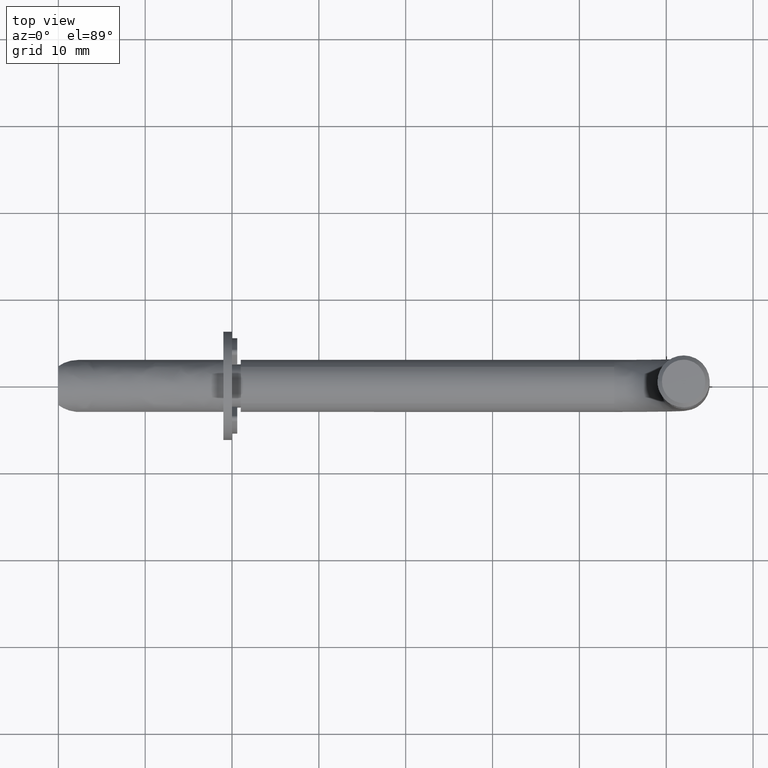
[diagram: clean part render]
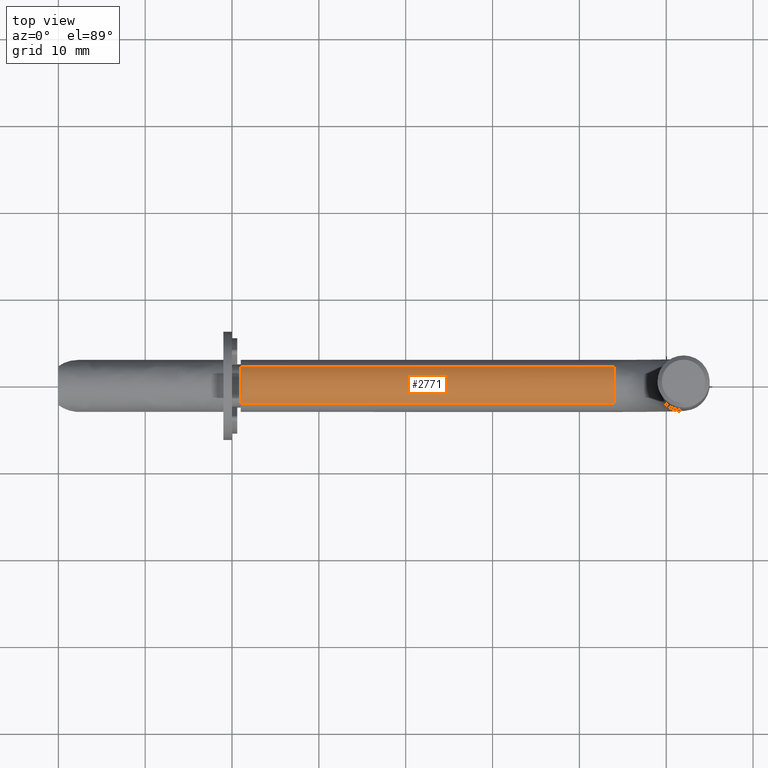
[diagram: same view with one face highlighted and labeled with its STEP entity id]
A machine part, top view. The second image highlights one B-rep face of the part: STEP entity #2771.
In plain terms, the highlighted face is a freeform B-spline surface patch.
Its self-contained STEP definition (entity closure, byte-faithful):
#2582=CARTESIAN_POINT('',(63.999969000000100,-2.065063027710262,18.176123776714721));
#2583=VERTEX_POINT('',#2582);
#2601=CARTESIAN_POINT('',(21.0,-2.065063677703554,18.176123159894551));
#2602=VERTEX_POINT('',#2601);
#2603=CARTESIAN_POINT('',(21.0,-2.065063677703554,18.176123159894551));
#2604=CARTESIAN_POINT('',(63.999969000000100,-2.065063027710262,18.176123776714721));
#2605=QUASI_UNIFORM_CURVE('',1,(#2603,#2604),.UNSPECIFIED.,.F.,.U.);
#2606=EDGE_CURVE('',#2602,#2583,#2605,.T.);
#2625=CARTESIAN_POINT('',(21.0,2.176123322532980,18.065063506318371));
#2626=VERTEX_POINT('',#2625);
#2642=CARTESIAN_POINT('',(63.999969000100577,2.176123713575499,18.065063094170949));
#2643=VERTEX_POINT('',#2642);
#2644=CARTESIAN_POINT('',(21.0,2.176123322532980,18.065063506318371));
#2645=CARTESIAN_POINT('',(63.999969000100577,2.176123713575499,18.065063094170949));
#2646=QUASI_UNIFORM_CURVE('',1,(#2644,#2645),.UNSPECIFIED.,.F.,.U.);
#2647=EDGE_CURVE('',#2626,#2643,#2646,.T.);
#2697=CARTESIAN_POINT('',(19.925000774992039,2.176123113036864,18.065063727081260));
#2698=CARTESIAN_POINT('',(19.925000774992043,0.111059385955600,20.241186840118118));
#2699=CARTESIAN_POINT('',(19.925000774992039,-2.065063727081260,18.176123113036851));
#2700=CARTESIAN_POINT('',(65.101843205951582,2.176123113036864,18.065063727081242));
#2701=CARTESIAN_POINT('',(65.101843205951596,0.111059385955600,20.241186840118107));
#2702=CARTESIAN_POINT('',(65.101843205951582,-2.065063727081260,18.176123113036841));
#2710=(BOUNDED_SURFACE()B_SPLINE_SURFACE(2,1,((#2697,#2700),(#2698,#2701),(#2699,#2702)),.UNSPECIFIED.,.F.,.F.,.U.)B_SPLINE_SURFACE_WITH_KNOTS((3,3),(2,2),(0.0,4.970562748477139),(0.0,45.176842430959553),.UNSPECIFIED.)GEOMETRIC_REPRESENTATION_ITEM()RATIONAL_B_SPLINE_SURFACE(((1.0,1.0),(0.707106781186548,0.707106781186548),(1.0,1.0)))REPRESENTATION_ITEM('')SURFACE());
#2711=CARTESIAN_POINT('',(63.999969000000100,2.939055E-015,19.0));
#2712=VERTEX_POINT('',#2711);
#2713=CARTESIAN_POINT('',(63.999969000000100,2.939055E-015,19.0));
#2714=CARTESIAN_POINT('',(63.999969000000107,-1.196877520307044,18.999999999999996));
#2715=CARTESIAN_POINT('',(63.999969000000100,-2.065063027710262,18.176123776714718));
#2723=(BOUNDED_CURVE()B_SPLINE_CURVE(2,(#2713,#2714,#2715),.UNSPECIFIED.,.F.,.U.)B_SPLINE_CURVE_WITH_KNOTS((3,3),(0.0,0.121049429656304),.UNSPECIFIED.)CURVE()GEOMETRIC_REPRESENTATION_ITEM()RATIONAL_B_SPLINE_CURVE((1.0,0.858181771649730,0.853699668552802))REPRESENTATION_ITEM(''));
#2724=EDGE_CURVE('',#2712,#2583,#2723,.T.);
#2725=ORIENTED_EDGE('',*,*,#2724,.F.);
#2726=CARTESIAN_POINT('',(63.999969000100577,2.176123713575499,18.065063094170949));
#2727=CARTESIAN_POINT('',(63.999969000000100,1.288902751362691,18.999999999999996));
#2728=CARTESIAN_POINT('',(63.999969000000100,2.939055E-015,19.0));
#2736=(BOUNDED_CURVE()B_SPLINE_CURVE(2,(#2726,#2727,#2728),.UNSPECIFIED.,.F.,.U.)B_SPLINE_CURVE_WITH_KNOTS((3,3),(0.871049438884839,1.0),.UNSPECIFIED.)CURVE()GEOMETRIC_REPRESENTATION_ITEM()RATIONAL_B_SPLINE_CURVE((0.853699667869392,0.848925020348719,1.0))REPRESENTATION_ITEM(''));
#2737=EDGE_CURVE('',#2643,#2712,#2736,.T.);
#2738=ORIENTED_EDGE('',*,*,#2737,.F.);
#2739=ORIENTED_EDGE('',*,*,#2647,.F.);
#2740=CARTESIAN_POINT('',(21.0,0.0,19.0));
#2741=VERTEX_POINT('',#2740);
#2742=CARTESIAN_POINT('',(21.0,0.0,19.0));
#2743=CARTESIAN_POINT('',(21.000000000000004,1.288902078421184,19.0));
#2744=CARTESIAN_POINT('',(20.999999999999996,2.176123322532980,18.065063506318364));
#2752=(BOUNDED_CURVE()B_SPLINE_CURVE(2,(#2742,#2743,#2744),.UNSPECIFIED.,.F.,.U.)B_SPLINE_CURVE_WITH_KNOTS((3,3),(0.0,0.128950503960748),.UNSPECIFIED.)CURVE()GEOMETRIC_REPRESENTATION_ITEM()RATIONAL_B_SPLINE_CURVE((1.0,0.848925087309278,0.853699663636914))REPRESENTATION_ITEM(''));
#2753=EDGE_CURVE('',#2741,#2626,#2752,.T.);
#2754=ORIENTED_EDGE('',*,*,#2753,.F.);
#2755=CARTESIAN_POINT('',(20.999999999999996,-2.065063677703554,18.176123159894548));
#2756=CARTESIAN_POINT('',(20.999999999999996,-1.196878559014192,19.000000000000004));
#2757=CARTESIAN_POINT('',(21.0,0.0,19.0));
#2765=(BOUNDED_CURVE()B_SPLINE_CURVE(2,(#2755,#2756,#2757),.UNSPECIFIED.,.F.,.U.)B_SPLINE_CURVE_WITH_KNOTS((3,3),(0.878950480189616,1.0),.UNSPECIFIED.)CURVE()GEOMETRIC_REPRESENTATION_ITEM()RATIONAL_B_SPLINE_CURVE((0.853699661876599,0.858181666027655,1.0))REPRESENTATION_ITEM(''));
#2766=EDGE_CURVE('',#2602,#2741,#2765,.T.);
#2767=ORIENTED_EDGE('',*,*,#2766,.F.);
#2768=ORIENTED_EDGE('',*,*,#2606,.T.);
#2769=EDGE_LOOP('',(#2725,#2738,#2739,#2754,#2767,#2768));
#2770=FACE_OUTER_BOUND('',#2769,.T.);
#2771=ADVANCED_FACE('',(#2770),#2710,.T.);